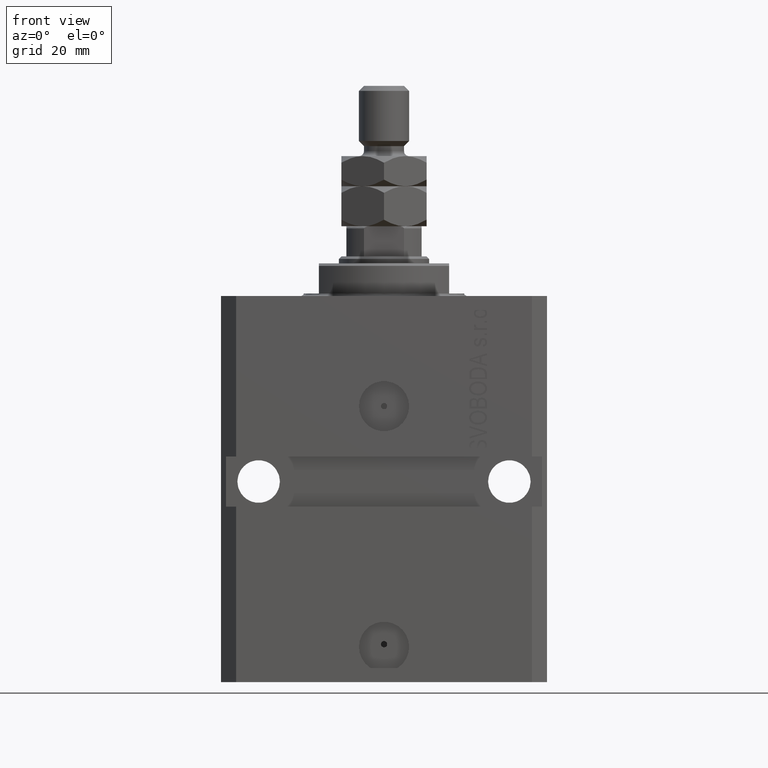
[diagram: clean part render]
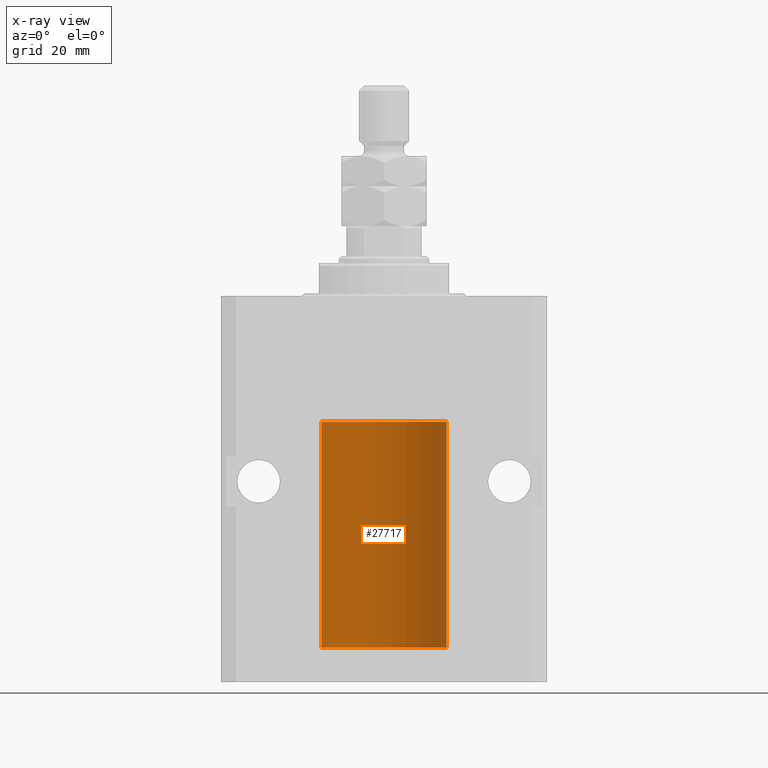
[diagram: x-ray — body ghosted, one internal face saturated and labeled with its STEP entity id]
A machine part, front view, then the same camera in x-ray: the body is ghosted and one INTERNAL B-rep face — a face not visible from any outside direction — is saturated and labeled: STEP entity #27717.
In plain terms, the highlighted cylindrical surface (partial cylindrical patch) has radius 12.5 mm, axis along (0, 0, 1).
Its self-contained STEP definition (entity closure, byte-faithful):
#368 = DIRECTION ( 'NONE',  ( -0.000000000000000000, -0.000000000000000000, 1.000000000000000000 ) ) ;
#505 = EDGE_CURVE ( 'NONE', #14407, #9560, #35225, .T. ) ;
#2346 = CARTESIAN_POINT ( 'NONE',  ( 12.48436522214846711, 0.6250000000078848039, -64.99999999999923261 ) ) ;
#2409 = VERTEX_POINT ( 'NONE', #13866 ) ;
#3373 = LINE ( 'NONE', #30035, #14389 ) ;
#3467 = EDGE_LOOP ( 'NONE', ( #10256, #8865, #32237, #30633, #33354, #26236, #27536, #22386, #22948 ) ) ;
#3767 = AXIS2_PLACEMENT_3D ( 'NONE', #42880, #12495, #8759 ) ;
#6569 = CARTESIAN_POINT ( 'NONE',  ( 12.48436522214885969, 0.6250000000001505462, -65.16312747540307271 ) ) ;
#6695 = CARTESIAN_POINT ( 'NONE',  ( -12.50000000000000000, 1.530808498934191127E-15, -70.09999999999999432 ) ) ;
#7175 = VECTOR ( 'NONE', #20181, 1000.000000000000000 ) ;
#7401 = DIRECTION ( 'NONE',  ( 0.000000000000000000, 0.000000000000000000, 1.000000000000000000 ) ) ;
#7595 = LINE ( 'NONE', #18782, #35850 ) ;
#7914 = EDGE_CURVE ( 'NONE', #45299, #16096, #44717, .T. ) ;
#8011 = CARTESIAN_POINT ( 'NONE',  ( 12.50000000000017941, 3.868073689162038701E-13, -64.37499999999640465 ) ) ;
#8038 = CARTESIAN_POINT ( 'NONE',  ( -12.50000000000017941, 3.883381774819353300E-13, -65.62500000000359535 ) ) ;
#8221 = CARTESIAN_POINT ( 'NONE',  ( 12.50000000000000000, -1.836039810331332019E-15, -65.62500000000000000 ) ) ;
#8254 = CARTESIAN_POINT ( 'NONE',  ( 12.49012055744648997, 0.5002956126656082914, -64.61641710202404454 ) ) ;
#8257 = LINE ( 'NONE', #12981, #7175 ) ;
#8759 = DIRECTION ( 'NONE',  ( 1.000000000000000000, 0.000000000000000000, 0.000000000000000000 ) ) ;
#8865 = ORIENTED_EDGE ( 'NONE', *, *, #505, .F. ) ;
#9017 = B_SPLINE_CURVE_WITH_KNOTS ( 'NONE', 3,
 ( #20782, #32504, #35993, #13325, #28761, #47683, #6569, #2346 ),
 .UNSPECIFIED., .F., .F.,
 ( 4, 2, 2, 4 ),
 ( 1.784246692340212412E-18, 0.0002443481056285665750, 0.0004886962112571313068, 0.0009773924225142606621 ),
 .UNSPECIFIED. ) ;
#9112 = DIRECTION ( 'NONE',  ( -0.000000000000000000, -0.000000000000000000, 1.000000000000000000 ) ) ;
#9560 = VERTEX_POINT ( 'NONE', #6695 ) ;
#10256 = ORIENTED_EDGE ( 'NONE', *, *, #21431, .F. ) ;
#10640 = DIRECTION ( 'NONE',  ( 1.000000000000000000, 0.000000000000000000, 0.000000000000000000 ) ) ;
#10784 = CARTESIAN_POINT ( 'NONE',  ( -12.49999999999999289, 0.1631761135151231223, -65.62499999999984368 ) ) ;
#12495 = DIRECTION ( 'NONE',  ( 0.000000000000000000, 0.000000000000000000, 1.000000000000000000 ) ) ;
#12981 = CARTESIAN_POINT ( 'NONE',  ( 12.50000000000000000, 0.000000000000000000, -70.09999999999999432 ) ) ;
#13086 = CYLINDRICAL_SURFACE ( 'NONE', #30704, 12.50000000000000000 ) ;
#13087 = VERTEX_POINT ( 'NONE', #34970 ) ;
#13325 = CARTESIAN_POINT ( 'NONE',  ( 12.49625698805481022, 0.3151108292486944906, -65.54593695688173227 ) ) ;
#13382 = EDGE_CURVE ( 'NONE', #2409, #13087, #26031, .T. ) ;
#13752 = AXIS2_PLACEMENT_3D ( 'NONE', #44773, #7401, #10640 ) ;
#13866 = CARTESIAN_POINT ( 'NONE',  ( 12.50000000000000000, 0.000000000000000000, -25.10000000000000142 ) ) ;
#13993 = EDGE_CURVE ( 'NONE', #14407, #25703, #14882, .T. ) ;
#13999 = CARTESIAN_POINT ( 'NONE',  ( 12.50000000000017941, 3.868073689162038701E-13, -64.37499999999640465 ) ) ;
#14389 = VECTOR ( 'NONE', #368, 1000.000000000000000 ) ;
#14407 = VERTEX_POINT ( 'NONE', #37924 ) ;
#14766 = CARTESIAN_POINT ( 'NONE',  ( -12.49631005746706158, 0.3253680783018496059, -65.55856740465392818 ) ) ;
#14882 = LINE ( 'NONE', #22845, #36434 ) ;
#15514 = CARTESIAN_POINT ( 'NONE',  ( -12.50000000000000000, -1.050566418211748297E-14, -64.37500000000000000 ) ) ;
#15735 = CARTESIAN_POINT ( 'NONE',  ( 12.48810305280568222, 0.5461368461738485003, -64.68525466142676805 ) ) ;
#16096 = VERTEX_POINT ( 'NONE', #23704 ) ;
#16327 = FACE_OUTER_BOUND ( 'NONE', #3467, .T. ) ;
#18491 = CARTESIAN_POINT ( 'NONE',  ( -12.49625855304193855, 0.3150454781038045660, -64.45402800297485157 ) ) ;
#18782 = CARTESIAN_POINT ( 'NONE',  ( -12.50000000000000000, 1.530808498934191127E-15, -70.09999999999999432 ) ) ;
#19229 = CARTESIAN_POINT ( 'NONE',  ( -12.49011732893843707, 0.5003763274120244242, -65.38348111289288056 ) ) ;
#20181 = DIRECTION ( 'NONE',  ( -0.000000000000000000, -0.000000000000000000, 1.000000000000000000 ) ) ;
#20782 = CARTESIAN_POINT ( 'NONE',  ( 12.50000000000000000, -1.836039810331332019E-15, -65.62500000000000000 ) ) ;
#21431 = EDGE_CURVE ( 'NONE', #9560, #16096, #3373, .T. ) ;
#21594 = EDGE_CURVE ( 'NONE', #25703, #32638, #9017, .T. ) ;
#22386 = ORIENTED_EDGE ( 'NONE', *, *, #45245, .F. ) ;
#22780 = DIRECTION ( 'NONE',  ( -0.000000000000000000, -0.000000000000000000, 1.000000000000000000 ) ) ;
#22845 = CARTESIAN_POINT ( 'NONE',  ( 12.50000000000000000, 0.000000000000000000, -70.09999999999999432 ) ) ;
#22948 = ORIENTED_EDGE ( 'NONE', *, *, #7914, .T. ) ;
#22981 = CARTESIAN_POINT ( 'NONE',  ( -12.49915784441386890, 0.1636601911727942615, -64.39126818989430490 ) ) ;
#23704 = CARTESIAN_POINT ( 'NONE',  ( -12.50000000000017941, 3.883381774819353300E-13, -65.62500000000359535 ) ) ;
#24295 = DIRECTION ( 'NONE',  ( 1.000000000000000000, 0.000000000000000000, 0.000000000000000000 ) ) ;
#24756 = CARTESIAN_POINT ( 'NONE',  ( -12.50000000000000000, -1.050566418211748297E-14, -64.37500000000000000 ) ) ;
#25703 = VERTEX_POINT ( 'NONE', #8221 ) ;
#26031 = CIRCLE ( 'NONE', #3767, 12.50000000000000000 ) ;
#26236 = ORIENTED_EDGE ( 'NONE', *, *, #44698, .T. ) ;
#27190 = CARTESIAN_POINT ( 'NONE',  ( 12.49631206032076136, 0.3252904079142934779, -64.44139700214927302 ) ) ;
#27536 = ORIENTED_EDGE ( 'NONE', *, *, #13382, .T. ) ;
#27717 = ADVANCED_FACE ( 'NONE', ( #16327 ), #13086, .F. ) ;
#27782 = CARTESIAN_POINT ( 'NONE',  ( 0.000000000000000000, 0.000000000000000000, -70.09999999999999432 ) ) ;
#28761 = CARTESIAN_POINT ( 'NONE',  ( 12.49421963472024721, 0.3844519291903572555, -65.49947303647046226 ) ) ;
#29388 = CARTESIAN_POINT ( 'NONE',  ( 12.48436522214846711, 0.6250000000078848039, -64.99999999999923261 ) ) ;
#30035 = CARTESIAN_POINT ( 'NONE',  ( -12.50000000000000000, 1.530808498934191127E-15, -70.09999999999999432 ) ) ;
#30633 = ORIENTED_EDGE ( 'NONE', *, *, #21594, .T. ) ;
#30704 = AXIS2_PLACEMENT_3D ( 'NONE', #27782, #9112, #24295 ) ;
#30711 = CARTESIAN_POINT ( 'NONE',  ( -12.48436376893640087, 0.6250290278979918623, -65.08132082824472775 ) ) ;
#32237 = ORIENTED_EDGE ( 'NONE', *, *, #13993, .T. ) ;
#32504 = CARTESIAN_POINT ( 'NONE',  ( 12.49999999999999822, 0.08262306818362624705, -65.62500000000000000 ) ) ;
#32638 = VERTEX_POINT ( 'NONE', #29388 ) ;
#33354 = ORIENTED_EDGE ( 'NONE', *, *, #36914, .T. ) ;
#33459 = CARTESIAN_POINT ( 'NONE',  ( -12.48436813453758454, 0.6249418250771179295, -64.83668996798921569 ) ) ;
#33699 = CARTESIAN_POINT ( 'NONE',  ( -12.49422197749724539, 0.3843754434364305972, -64.50047099568097053 ) ) ;
#34440 = CARTESIAN_POINT ( 'NONE',  ( -12.48809959379011580, 0.5462151254764967545, -65.31461370481615347 ) ) ;
#34544 = DIRECTION ( 'NONE',  ( -0.000000000000000000, -0.000000000000000000, 1.000000000000000000 ) ) ;
#34656 = CARTESIAN_POINT ( 'NONE',  ( 12.48520578595314845, 0.6087855079133740466, -64.83656717509344958 ) ) ;
#34970 = CARTESIAN_POINT ( 'NONE',  ( -12.50000000000000000, 1.530808498934191127E-15, -25.10000000000000142 ) ) ;
#35021 = VERTEX_POINT ( 'NONE', #13999 ) ;
#35225 = CIRCLE ( 'NONE', #13752, 12.50000000000000000 ) ;
#35393 = CARTESIAN_POINT ( 'NONE',  ( 12.48436522214846711, 0.6250000000078848039, -64.99999999999923261 ) ) ;
#35850 = VECTOR ( 'NONE', #22780, 1000.000000000000000 ) ;
#35993 = CARTESIAN_POINT ( 'NONE',  ( 12.49915742890631876, 0.1636982395582385896, -65.60872397847025184 ) ) ;
#36434 = VECTOR ( 'NONE', #34544, 1000.000000000000000 ) ;
#36914 = EDGE_CURVE ( 'NONE', #32638, #35021, #42028, .T. ) ;
#37924 = CARTESIAN_POINT ( 'NONE',  ( 12.50000000000000000, 0.000000000000000000, -70.09999999999999432 ) ) ;
#38636 = CARTESIAN_POINT ( 'NONE',  ( 12.48436522214888100, 0.6249999999996834754, -64.91847339462351840 ) ) ;
#42028 = B_SPLINE_CURVE_WITH_KNOTS ( 'NONE', 3,
 ( #35393, #38636, #34656, #15735, #8254, #27190, #42136, #8011 ),
 .UNSPECIFIED., .F., .F.,
 ( 4, 2, 2, 4 ),
 ( 0.0009773924225142606621, 0.001221629287363811033, 0.001465866152213361404, 0.001954339881912461711 ),
 .UNSPECIFIED. ) ;
#42136 = CARTESIAN_POINT ( 'NONE',  ( 12.49999999999999822, 0.1631389616600901760, -64.37500000000022737 ) ) ;
#42166 = CARTESIAN_POINT ( 'NONE',  ( -12.48810268015257741, 0.5573155909661291485, -64.67347410093869087 ) ) ;
#42880 = CARTESIAN_POINT ( 'NONE',  ( 0.000000000000000000, 0.000000000000000000, -25.10000000000000142 ) ) ;
#44698 = EDGE_CURVE ( 'NONE', #35021, #2409, #8257, .T. ) ;
#44717 = B_SPLINE_CURVE_WITH_KNOTS ( 'NONE', 3,
 ( #15514, #44914, #22981, #18491, #33699, #42166, #33459, #30711, #48875, #34440, #19229, #14766, #10784, #8038 ),
 .UNSPECIFIED., .F., .F.,
 ( 4, 2, 2, 2, 2, 2, 4 ),
 ( 3.452213508042194616E-18, 0.0002442924852390797774, 0.0004885849704781561938, 0.0009771699409563384085, 0.001221462426195450224, 0.001465754911434562040, 0.001954339881912785671 ),
 .UNSPECIFIED. ) ;
#44773 = CARTESIAN_POINT ( 'NONE',  ( 0.000000000000000000, 0.000000000000000000, -70.09999999999999432 ) ) ;
#44914 = CARTESIAN_POINT ( 'NONE',  ( -12.49999999999999645, 0.08260426088728482774, -64.37499999999998579 ) ) ;
#45245 = EDGE_CURVE ( 'NONE', #45299, #13087, #7595, .T. ) ;
#45299 = VERTEX_POINT ( 'NONE', #24756 ) ;
#47683 = CARTESIAN_POINT ( 'NONE',  ( 12.48809900631782099, 0.5573988467445673001, -65.32640147935475738 ) ) ;
#48875 = CARTESIAN_POINT ( 'NONE',  ( -12.48520330846398174, 0.6088355886774118320, -65.16325431852561678 ) ) ;